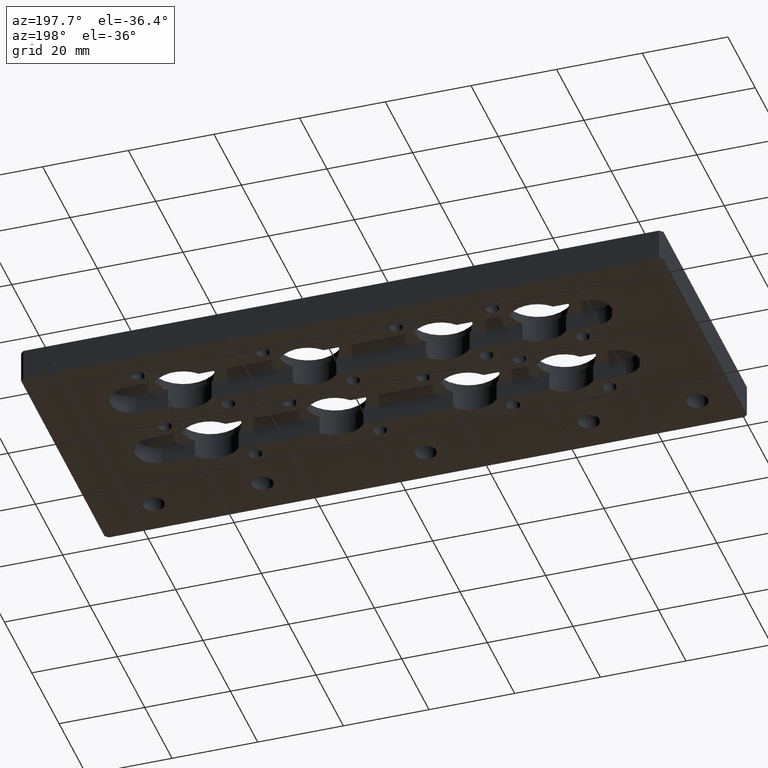
[diagram: clean part render]
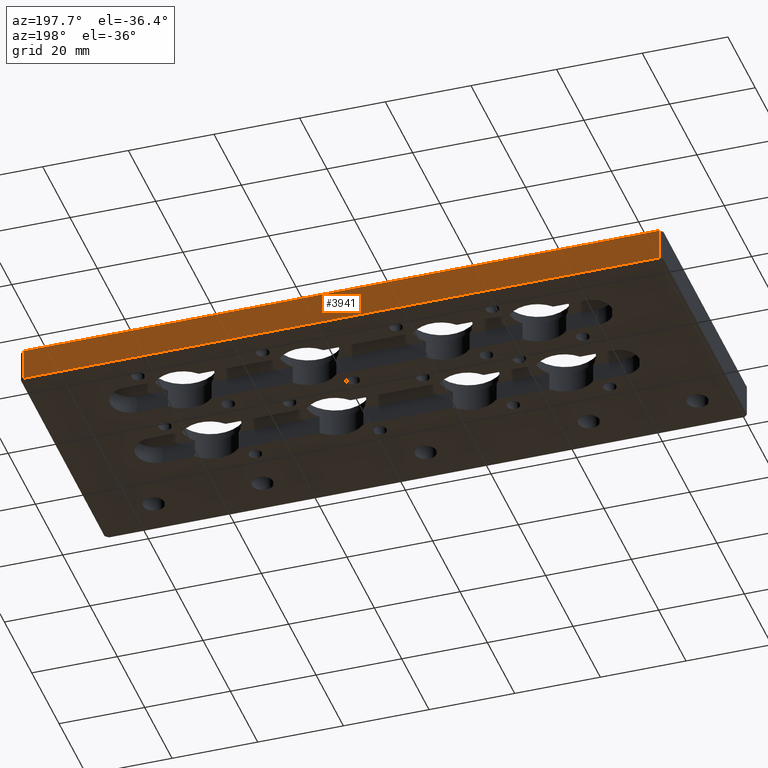
[diagram: same view with one face highlighted and labeled with its STEP entity id]
A machine part, auxiliary view. The second image highlights one B-rep face of the part: STEP entity #3941.
In plain terms, the highlighted planar face has unit normal (-0, 1, 0).
Its self-contained STEP definition (entity closure, byte-faithful):
#98 = ORIENTED_EDGE ( 'NONE', *, *, #3667, .T. ) ;
#167 = EDGE_CURVE ( 'NONE', #4097, #6319, #1947, .T. ) ;
#717 = EDGE_CURVE ( 'NONE', #7111, #6319, #6895, .T. ) ;
#748 = EDGE_LOOP ( 'NONE', ( #6736, #98, #7282, #4473 ) ) ;
#881 = CARTESIAN_POINT ( 'NONE',  ( 5.874993993654023900, 2.465000000000000700, 0.0000000000000000000 ) ) ;
#954 = CARTESIAN_POINT ( 'NONE',  ( 0.02999399365402600000, 2.464999999999999900, 0.2970000000000000400 ) ) ;
#1383 = DIRECTION ( 'NONE',  ( 1.000000000000000000, 0.0000000000000000000, 0.0000000000000000000 ) ) ;
#1947 = LINE ( 'NONE', #2153, #3464 ) ;
#2017 = VECTOR ( 'NONE', #7360, 39.37007874015748100 ) ;
#2153 = CARTESIAN_POINT ( 'NONE',  ( 5.874993993654027400, 2.464999999999999900, 0.2970000000000000400 ) ) ;
#2370 = DIRECTION ( 'NONE',  ( 0.0000000000000000000, -0.0000000000000000000, 1.000000000000000000 ) ) ;
#2427 = VECTOR ( 'NONE', #5650, 39.37007874015748100 ) ;
#2837 = AXIS2_PLACEMENT_3D ( 'NONE', #4701, #5871, #2370 ) ;
#3070 = DIRECTION ( 'NONE',  ( 0.0000000000000000000, 0.0000000000000000000, -1.000000000000000000 ) ) ;
#3464 = VECTOR ( 'NONE', #3070, 39.37007874015748100 ) ;
#3507 = PLANE ( 'NONE',  #2837 ) ;
#3539 = LINE ( 'NONE', #954, #2017 ) ;
#3667 = EDGE_CURVE ( 'NONE', #7111, #6922, #3539, .T. ) ;
#3941 = ADVANCED_FACE ( 'NONE', ( #5018 ), #3507, .T. ) ;
#4097 = VERTEX_POINT ( 'NONE', #6598 ) ;
#4473 = ORIENTED_EDGE ( 'NONE', *, *, #167, .T. ) ;
#4701 = CARTESIAN_POINT ( 'NONE',  ( -6.006345972861253700E-006, 2.464999999999999900, 0.2970000000000000400 ) ) ;
#4893 = CARTESIAN_POINT ( 'NONE',  ( -6.006345972861253700E-006, 2.464999999999999900, 0.0000000000000000000 ) ) ;
#5018 = FACE_OUTER_BOUND ( 'NONE', #748, .T. ) ;
#5042 = CARTESIAN_POINT ( 'NONE',  ( 0.02999399365402600000, 2.464999999999999900, 0.2970000000000000400 ) ) ;
#5064 = CARTESIAN_POINT ( 'NONE',  ( -6.006345972861253700E-006, 2.464999999999999900, 0.2970000000000000400 ) ) ;
#5650 = DIRECTION ( 'NONE',  ( 1.000000000000000000, 0.0000000000000000000, 0.0000000000000000000 ) ) ;
#5871 = DIRECTION ( 'NONE',  ( -0.0000000000000000000, 1.000000000000000000, 0.0000000000000000000 ) ) ;
#6319 = VERTEX_POINT ( 'NONE', #881 ) ;
#6420 = CARTESIAN_POINT ( 'NONE',  ( 0.02999399365402600000, 2.464999999999999900, 0.0000000000000000000 ) ) ;
#6598 = CARTESIAN_POINT ( 'NONE',  ( 5.874993993654025600, 2.465000000000000700, 0.2970000000000000400 ) ) ;
#6736 = ORIENTED_EDGE ( 'NONE', *, *, #717, .F. ) ;
#6895 = LINE ( 'NONE', #4893, #7077 ) ;
#6922 = VERTEX_POINT ( 'NONE', #5042 ) ;
#7077 = VECTOR ( 'NONE', #1383, 39.37007874015748100 ) ;
#7089 = LINE ( 'NONE', #5064, #2427 ) ;
#7111 = VERTEX_POINT ( 'NONE', #6420 ) ;
#7282 = ORIENTED_EDGE ( 'NONE', *, *, #7443, .T. ) ;
#7360 = DIRECTION ( 'NONE',  ( 0.0000000000000000000, 0.0000000000000000000, 1.000000000000000000 ) ) ;
#7443 = EDGE_CURVE ( 'NONE', #6922, #4097, #7089, .T. ) ;